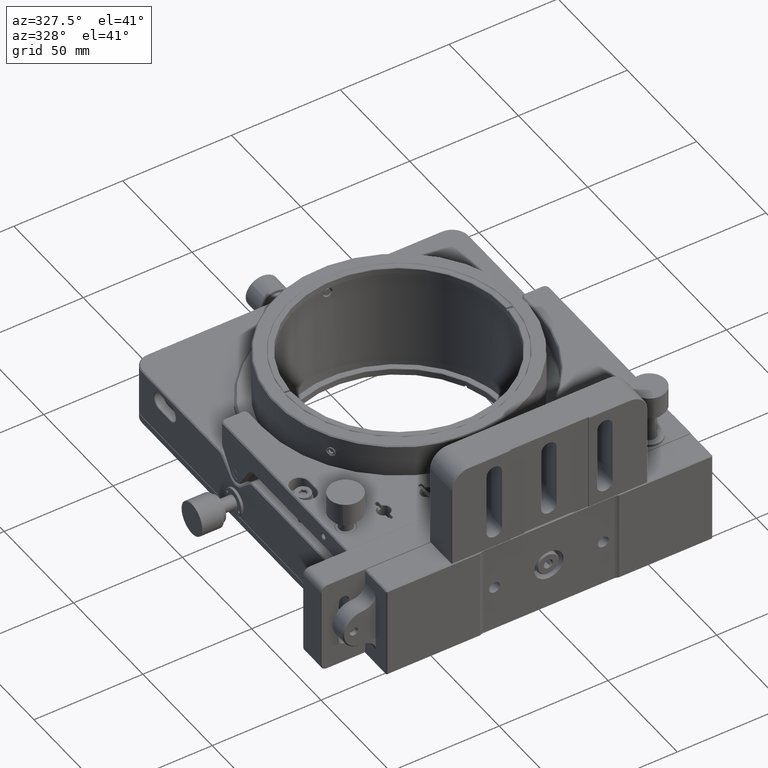
[diagram: clean part render]
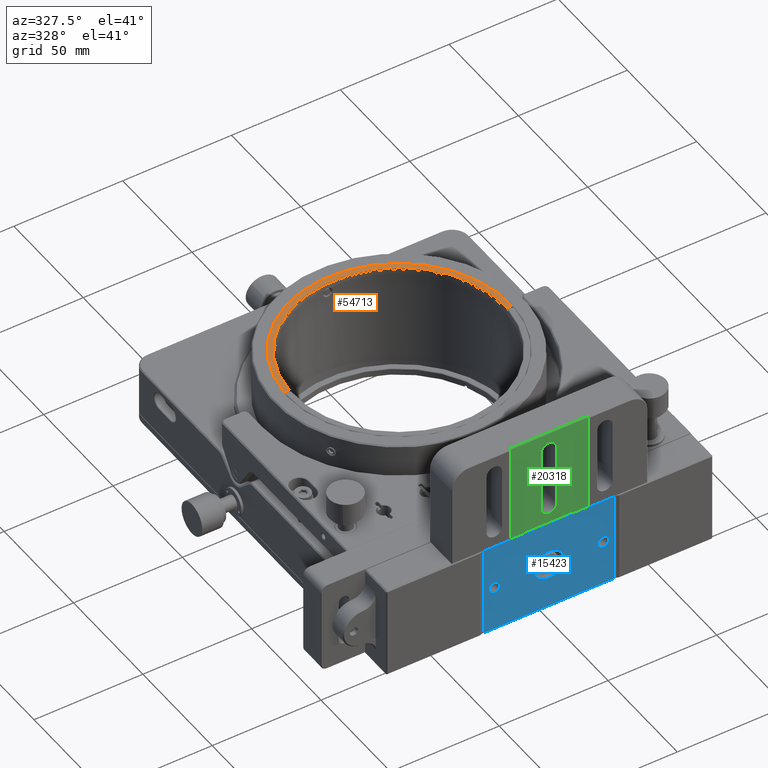
[diagram: same view with three faces highlighted in distinct colors, each labeled with its STEP entity id]
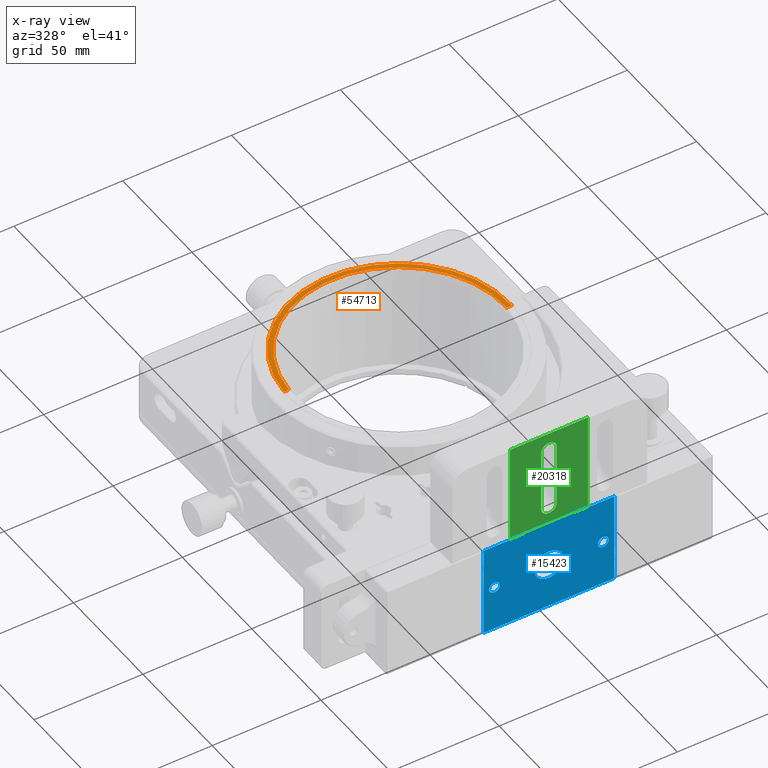
[diagram: x-ray of the same camera — body ghosted, the three highlighted faces saturated]
A machine part, auxiliary view with three faces highlighted in distinct colors.
The next image is the same camera in x-ray (body ghosted, the three faces saturated) — at least one of them is partly hidden behind the body in this view.
Their STEP definitions:

[orange] entity #54713 — the highlighted planar face has unit normal (0, 0, 1).
#6982 = CARTESIAN_POINT ( 'NONE',  ( -50.91170843086489839, 103.8046471215291859, 31.00000000000000000 ) ) ;
#7331 = DIRECTION ( 'NONE',  ( -2.547744655043520196E-18, -5.629695060032849058E-17, -1.000000000000000000 ) ) ;
#8041 = EDGE_CURVE ( 'NONE', #27380, #54493, #62987, .T. ) ;
#9778 = DIRECTION ( 'NONE',  ( 0.000000000000000000, -1.000000000000000000, 5.568915337801359241E-17 ) ) ;
#11958 = CARTESIAN_POINT ( 'NONE',  ( -48.56943563488880500, 103.6986464779245978, 31.00000000000000000 ) ) ;
#12565 = LINE ( 'NONE', #37384, #57631 ) ;
#13133 = AXIS2_PLACEMENT_3D ( 'NONE', #71982, #33384, #9778 ) ;
#15844 = CARTESIAN_POINT ( 'NONE',  ( 48.62368666622140267, 99.30012657215560523, 31.00000000000000000 ) ) ;
#16277 = ORIENTED_EDGE ( 'NONE', *, *, #30715, .F. ) ;
#18693 = EDGE_CURVE ( 'NONE', #27967, #54493, #33822, .T. ) ;
#18916 = ORIENTED_EDGE ( 'NONE', *, *, #8041, .T. ) ;
#20722 = DIRECTION ( 'NONE',  ( -0.9989775417337622976, 0.04520919277723466773, 0.000000000000000000 ) ) ;
#25564 = DIRECTION ( 'NONE',  ( -0.9989775417337621866, 0.04520919277723479957, 1.344410693882026114E-17 ) ) ;
#27380 = VERTEX_POINT ( 'NONE', #35665 ) ;
#27967 = VERTEX_POINT ( 'NONE', #11958 ) ;
#28095 = CARTESIAN_POINT ( 'NONE',  ( 49948.90421220380085, -2158.960252336699796, 30.99999999999934630 ) ) ;
#28481 = PLANE ( 'NONE',  #13133 ) ;
#29822 = VECTOR ( 'NONE', #39119, 1000.000000000000114 ) ;
#30715 = EDGE_CURVE ( 'NONE', #27380, #66044, #12565, .T. ) ;
#30743 = DIRECTION ( 'NONE',  ( 2.547744655043520196E-18, 5.629695060032849058E-17, 1.000000000000000000 ) ) ;
#33384 = DIRECTION ( 'NONE',  ( 1.597810555559200111E-17, 5.568915337801359241E-17, 1.000000000000000000 ) ) ;
#33822 = LINE ( 'NONE', #28095, #29822 ) ;
#35665 = CARTESIAN_POINT ( 'NONE',  ( 50.96595946219749607, 99.19412592855120181, 31.00000000000000000 ) ) ;
#37384 = CARTESIAN_POINT ( 'NONE',  ( 49948.90421220380085, -2158.960252336699796, 30.99999999999934630 ) ) ;
#37528 = CIRCLE ( 'NONE', #71236, 48.64999999999998437 ) ;
#39119 = DIRECTION ( 'NONE',  ( -0.9989775417337621866, 0.04520919277723479957, 1.344410693882026114E-17 ) ) ;
#42101 = ORIENTED_EDGE ( 'NONE', *, *, #18693, .F. ) ;
#42453 = EDGE_LOOP ( 'NONE', ( #16277, #18916, #42101, #68601 ) ) ;
#50410 = EDGE_CURVE ( 'NONE', #27967, #66044, #37528, .T. ) ;
#54493 = VERTEX_POINT ( 'NONE', #6982 ) ;
#54713 = ADVANCED_FACE ( 'NONE', ( #65479 ), #28481, .T. ) ;
#57631 = VECTOR ( 'NONE', #25564, 1000.000000000000114 ) ;
#62987 = CIRCLE ( 'NONE', #68202, 50.99449999999998084 ) ;
#65479 = FACE_OUTER_BOUND ( 'NONE', #42453, .T. ) ;
#66044 = VERTEX_POINT ( 'NONE', #15844 ) ;
#66547 = DIRECTION ( 'NONE',  ( -0.9989775417337624086, 0.04520919277723474405, 0.000000000000000000 ) ) ;
#68202 = AXIS2_PLACEMENT_3D ( 'NONE', #74251, #30743, #66547 ) ;
#68601 = ORIENTED_EDGE ( 'NONE', *, *, #50410, .T. ) ;
#71236 = AXIS2_PLACEMENT_3D ( 'NONE', #76051, #7331, #20722 ) ;
#71982 = CARTESIAN_POINT ( 'NONE',  ( -4.535430649846460040E-14, 100.9000000000000057, 31.00000000000000000 ) ) ;
#74251 = CARTESIAN_POINT ( 'NONE',  ( -4.535430649846460040E-14, 100.9000000000000057, 31.00000000000000000 ) ) ;
#76051 = CARTESIAN_POINT ( 'NONE',  ( -4.535430649846460040E-14, 100.9000000000000057, 31.00000000000000000 ) ) ;

[blue] entity #15423 — the highlighted planar face has unit normal (0, -1, 0).
#407 = CARTESIAN_POINT ( 'NONE',  ( -25.00000000000000000, -7.400000000000000355, -2.524999999999999911 ) ) ;
#1703 = CARTESIAN_POINT ( 'NONE',  ( 30.00000000000000000, -7.400000000000000355, 21.00000000000000000 ) ) ;
#2975 = VERTEX_POINT ( 'NONE', #80009 ) ;
#3219 = CARTESIAN_POINT ( 'NONE',  ( -30.00000000000000000, -7.400000000000000355, -21.50000000000000000 ) ) ;
#3860 = AXIS2_PLACEMENT_3D ( 'NONE', #78465, #23536, #47160 ) ;
#4063 = VERTEX_POINT ( 'NONE', #407 ) ;
#5407 = AXIS2_PLACEMENT_3D ( 'NONE', #68239, #19433, #55231 ) ;
#5435 = ORIENTED_EDGE ( 'NONE', *, *, #52379, .F. ) ;
#6538 = DIRECTION ( 'NONE',  ( -1.000000000000000000, -1.156482317317869999E-16, 0.000000000000000000 ) ) ;
#8118 = CIRCLE ( 'NONE', #58740, 6.750000000000000000 ) ;
#9059 = VECTOR ( 'NONE', #28007, 1000.000000000000000 ) ;
#9456 = CARTESIAN_POINT ( 'NONE',  ( 1.224646799147351975E-16, -7.400000000000000355, 0.000000000000000000 ) ) ;
#9850 = DIRECTION ( 'NONE',  ( 1.000000000000000000, 1.284980352575412699E-16, 0.000000000000000000 ) ) ;
#10407 = ORIENTED_EDGE ( 'NONE', *, *, #45158, .T. ) ;
#11403 = DIRECTION ( 'NONE',  ( 1.000000000000000000, 0.000000000000000000, 0.000000000000000000 ) ) ;
#11623 = CIRCLE ( 'NONE', #3860, 2.524999999999999467 ) ;
#12052 = PLANE ( 'NONE',  #71132 ) ;
#13443 = LINE ( 'NONE', #56144, #65770 ) ;
#13737 = CIRCLE ( 'NONE', #56571, 2.524999999999999467 ) ;
#15423 = ADVANCED_FACE ( 'NONE', ( #64965, #47868, #72660, #16944 ), #12052, .T. ) ;
#16336 = DIRECTION ( 'NONE',  ( 1.284980352575413685E-16, -1.000000000000000000, 0.000000000000000000 ) ) ;
#16747 = EDGE_LOOP ( 'NONE', ( #48555, #48993 ) ) ;
#16944 = FACE_BOUND ( 'NONE', #60136, .T. ) ;
#18039 = VERTEX_POINT ( 'NONE', #68386 ) ;
#18676 = VERTEX_POINT ( 'NONE', #1703 ) ;
#19433 = DIRECTION ( 'NONE',  ( 0.000000000000000000, -1.000000000000000000, 0.000000000000000000 ) ) ;
#20943 = CIRCLE ( 'NONE', #5407, 2.524999999999999467 ) ;
#21968 = CARTESIAN_POINT ( 'NONE',  ( 1.224646799147351975E-16, -7.400000000000000355, -6.750000000000000000 ) ) ;
#22549 = EDGE_LOOP ( 'NONE', ( #24252, #63631 ) ) ;
#23536 = DIRECTION ( 'NONE',  ( 0.000000000000000000, -1.000000000000000000, 0.000000000000000000 ) ) ;
#24168 = ORIENTED_EDGE ( 'NONE', *, *, #73041, .F. ) ;
#24252 = ORIENTED_EDGE ( 'NONE', *, *, #77571, .F. ) ;
#24833 = EDGE_LOOP ( 'NONE', ( #71006, #24168, #77578, #10407 ) ) ;
#27314 = ORIENTED_EDGE ( 'NONE', *, *, #40169, .F. ) ;
#27655 = CARTESIAN_POINT ( 'NONE',  ( -25.00000000000000000, -7.400000000000000355, -7.654042494670959381E-15 ) ) ;
#28007 = DIRECTION ( 'NONE',  ( 0.000000000000000000, 0.000000000000000000, 1.000000000000000000 ) ) ;
#32248 = DIRECTION ( 'NONE',  ( 1.284980352575413685E-16, -1.000000000000000000, 0.000000000000000000 ) ) ;
#33428 = DIRECTION ( 'NONE',  ( 1.000000000000000000, 1.284980352575412699E-16, 0.000000000000000000 ) ) ;
#34133 = LINE ( 'NONE', #3219, #9059 ) ;
#34496 = EDGE_CURVE ( 'NONE', #4063, #35215, #13737, .T. ) ;
#34687 = DIRECTION ( 'NONE',  ( 1.000000000000000000, 1.156482317317869999E-16, 0.000000000000000000 ) ) ;
#35215 = VERTEX_POINT ( 'NONE', #78297 ) ;
#36030 = VECTOR ( 'NONE', #41649, 1000.000000000000000 ) ;
#36073 = DIRECTION ( 'NONE',  ( 1.164243943608595935E-16, -1.000000000000000000, 0.000000000000000000 ) ) ;
#36350 = LINE ( 'NONE', #61136, #36030 ) ;
#39804 = CIRCLE ( 'NONE', #60569, 2.524999999999999467 ) ;
#40169 = EDGE_CURVE ( 'NONE', #61567, #66572, #39804, .T. ) ;
#40790 = CARTESIAN_POINT ( 'NONE',  ( -30.00000000000000000, -7.400000000000000355, -21.00000000000000000 ) ) ;
#41649 = DIRECTION ( 'NONE',  ( 0.000000000000000000, 0.000000000000000000, 1.000000000000000000 ) ) ;
#41916 = DIRECTION ( 'NONE',  ( 0.000000000000000000, -1.000000000000000000, 0.000000000000000000 ) ) ;
#45158 = EDGE_CURVE ( 'NONE', #64914, #18676, #36350, .T. ) ;
#45972 = DIRECTION ( 'NONE',  ( 1.000000000000000000, 0.000000000000000000, 0.000000000000000000 ) ) ;
#46255 = CARTESIAN_POINT ( 'NONE',  ( 25.00000000000000000, -7.400000000000000355, -2.524999999999999911 ) ) ;
#47160 = DIRECTION ( 'NONE',  ( 1.000000000000000000, 0.000000000000000000, 0.000000000000000000 ) ) ;
#47868 = FACE_BOUND ( 'NONE', #22549, .T. ) ;
#48555 = ORIENTED_EDGE ( 'NONE', *, *, #34496, .F. ) ;
#48871 = CARTESIAN_POINT ( 'NONE',  ( -30.00000000000000000, -7.400000000000000355, 21.00000000000000000 ) ) ;
#48993 = ORIENTED_EDGE ( 'NONE', *, *, #75953, .F. ) ;
#52299 = CARTESIAN_POINT ( 'NONE',  ( 25.00000000000000000, -7.400000000000000355, 2.524999999999999911 ) ) ;
#52379 = EDGE_CURVE ( 'NONE', #66572, #61567, #11623, .T. ) ;
#53524 = AXIS2_PLACEMENT_3D ( 'NONE', #63925, #32248, #33428 ) ;
#54101 = CARTESIAN_POINT ( 'NONE',  ( 25.00000000000000000, -7.400000000000000355, 1.530808498934190141E-15 ) ) ;
#54440 = VERTEX_POINT ( 'NONE', #48871 ) ;
#54701 = VERTEX_POINT ( 'NONE', #21968 ) ;
#54753 = DIRECTION ( 'NONE',  ( 0.000000000000000000, 0.000000000000000000, -1.000000000000000000 ) ) ;
#54826 = CARTESIAN_POINT ( 'NONE',  ( 30.00000000000000000, -7.400000000000000355, -21.00000000000000000 ) ) ;
#55231 = DIRECTION ( 'NONE',  ( 1.000000000000000000, 0.000000000000000000, 0.000000000000000000 ) ) ;
#56144 = CARTESIAN_POINT ( 'NONE',  ( -30.00000000000000000, -7.400000000000000355, 21.00000000000000000 ) ) ;
#56571 = AXIS2_PLACEMENT_3D ( 'NONE', #27655, #69968, #45972 ) ;
#58740 = AXIS2_PLACEMENT_3D ( 'NONE', #9456, #16336, #9850 ) ;
#59017 = EDGE_CURVE ( 'NONE', #18039, #54701, #75597, .T. ) ;
#59074 = LINE ( 'NONE', #40790, #63399 ) ;
#60136 = EDGE_LOOP ( 'NONE', ( #5435, #27314 ) ) ;
#60569 = AXIS2_PLACEMENT_3D ( 'NONE', #54101, #41916, #11403 ) ;
#61136 = CARTESIAN_POINT ( 'NONE',  ( 30.00000000000000000, -7.400000000000000355, -21.50000000000000000 ) ) ;
#61567 = VERTEX_POINT ( 'NONE', #52299 ) ;
#63399 = VECTOR ( 'NONE', #34687, 1000.000000000000000 ) ;
#63631 = ORIENTED_EDGE ( 'NONE', *, *, #59017, .F. ) ;
#63925 = CARTESIAN_POINT ( 'NONE',  ( 1.224646799147351975E-16, -7.400000000000000355, 0.000000000000000000 ) ) ;
#64914 = VERTEX_POINT ( 'NONE', #54826 ) ;
#64965 = FACE_OUTER_BOUND ( 'NONE', #24833, .T. ) ;
#65770 = VECTOR ( 'NONE', #6538, 1000.000000000000000 ) ;
#65820 = EDGE_CURVE ( 'NONE', #18676, #54440, #13443, .T. ) ;
#66572 = VERTEX_POINT ( 'NONE', #46255 ) ;
#68239 = CARTESIAN_POINT ( 'NONE',  ( -25.00000000000000000, -7.400000000000000355, -7.654042494670959381E-15 ) ) ;
#68386 = CARTESIAN_POINT ( 'NONE',  ( 9.491012693391979898E-16, -7.400000000000000355, 6.750000000000000000 ) ) ;
#68432 = EDGE_CURVE ( 'NONE', #2975, #64914, #59074, .T. ) ;
#69968 = DIRECTION ( 'NONE',  ( 0.000000000000000000, -1.000000000000000000, 0.000000000000000000 ) ) ;
#71006 = ORIENTED_EDGE ( 'NONE', *, *, #65820, .T. ) ;
#71132 = AXIS2_PLACEMENT_3D ( 'NONE', #80370, #36073, #54753 ) ;
#72660 = FACE_BOUND ( 'NONE', #16747, .T. ) ;
#73041 = EDGE_CURVE ( 'NONE', #2975, #54440, #34133, .T. ) ;
#75597 = CIRCLE ( 'NONE', #53524, 6.750000000000000000 ) ;
#75953 = EDGE_CURVE ( 'NONE', #35215, #4063, #20943, .T. ) ;
#77571 = EDGE_CURVE ( 'NONE', #54701, #18039, #8118, .T. ) ;
#77578 = ORIENTED_EDGE ( 'NONE', *, *, #68432, .T. ) ;
#78297 = CARTESIAN_POINT ( 'NONE',  ( -25.00000000000000000, -7.400000000000000355, 2.524999999999999911 ) ) ;
#78465 = CARTESIAN_POINT ( 'NONE',  ( 25.00000000000000000, -7.400000000000000355, 1.530808498934190141E-15 ) ) ;
#80009 = CARTESIAN_POINT ( 'NONE',  ( -30.00000000000000000, -7.400000000000000355, -21.00000000000000000 ) ) ;
#80370 = CARTESIAN_POINT ( 'NONE',  ( 8.615405182703600449E-16, -7.400000000000000355, 0.000000000000000000 ) ) ;

[green] entity #20318 — the highlighted planar face has unit normal (-0, -1, 0).
#2264 = VECTOR ( 'NONE', #10193, 1000.000000000000000 ) ;
#2423 = VERTEX_POINT ( 'NONE', #73202 ) ;
#2844 = VECTOR ( 'NONE', #54736, 1000.000000000000000 ) ;
#3321 = FACE_OUTER_BOUND ( 'NONE', #53804, .T. ) ;
#3615 = CARTESIAN_POINT ( 'NONE',  ( 10.00000000000000000, -7.400000000000000355, 19.00000000000000000 ) ) ;
#9016 = FACE_BOUND ( 'NONE', #58870, .T. ) ;
#9356 = VECTOR ( 'NONE', #40530, 1000.000000000000000 ) ;
#10193 = DIRECTION ( 'NONE',  ( 1.000000000000000000, -5.551115123125779621E-17, -1.734723475976804876E-16 ) ) ;
#10476 = AXIS2_PLACEMENT_3D ( 'NONE', #52920, #77725, #15917 ) ;
#10911 = DIRECTION ( 'NONE',  ( 0.000000000000000000, 0.000000000000000000, 1.000000000000000000 ) ) ;
#11658 = VERTEX_POINT ( 'NONE', #41107 ) ;
#11670 = CARTESIAN_POINT ( 'NONE',  ( 2.393918396847994579E-15, -7.400000000000000355, 26.50000000000000000 ) ) ;
#11699 = EDGE_CURVE ( 'NONE', #23222, #28624, #28898, .T. ) ;
#11763 = ORIENTED_EDGE ( 'NONE', *, *, #51639, .T. ) ;
#12011 = VERTEX_POINT ( 'NONE', #45505 ) ;
#13035 = EDGE_CURVE ( 'NONE', #53874, #2423, #39124, .T. ) ;
#13303 = AXIS2_PLACEMENT_3D ( 'NONE', #54145, #16738, #22835 ) ;
#13727 = EDGE_CURVE ( 'NONE', #28624, #13957, #60826, .T. ) ;
#13771 = ORIENTED_EDGE ( 'NONE', *, *, #67521, .T. ) ;
#13957 = VERTEX_POINT ( 'NONE', #80425 ) ;
#15144 = ORIENTED_EDGE ( 'NONE', *, *, #64353, .T. ) ;
#15917 = DIRECTION ( 'NONE',  ( -1.000000000000000000, 5.551115123125809819E-17, 0.000000000000000000 ) ) ;
#16738 = DIRECTION ( 'NONE',  ( 5.551115123125809819E-17, 1.000000000000000000, 3.530871564709945388E-31 ) ) ;
#17041 = DIRECTION ( 'NONE',  ( 1.000000000000000000, -5.551115123125779621E-17, 0.000000000000000000 ) ) ;
#18044 = VECTOR ( 'NONE', #72052, 1000.000000000000000 ) ;
#19102 = AXIS2_PLACEMENT_3D ( 'NONE', #41434, #72721, #34130 ) ;
#20175 = EDGE_CURVE ( 'NONE', #12011, #53874, #57209, .T. ) ;
#20318 = ADVANCED_FACE ( 'NONE', ( #9016, #3321 ), #28106, .T. ) ;
#20411 = CARTESIAN_POINT ( 'NONE',  ( 18.00000000000000000, -7.400000000000000355, 67.25000000000000000 ) ) ;
#20909 = VERTEX_POINT ( 'NONE', #11670 ) ;
#21902 = DIRECTION ( 'NONE',  ( 5.551115123125809819E-17, 1.000000000000000000, 0.000000000000000000 ) ) ;
#22835 = DIRECTION ( 'NONE',  ( -6.360652745248294783E-15, 0.000000000000000000, 1.000000000000000000 ) ) ;
#23222 = VERTEX_POINT ( 'NONE', #79679 ) ;
#25490 = ORIENTED_EDGE ( 'NONE', *, *, #11699, .T. ) ;
#27313 = DIRECTION ( 'NONE',  ( 0.000000000000000000, 0.000000000000000000, 1.000000000000000000 ) ) ;
#28106 = PLANE ( 'NONE',  #10476 ) ;
#28624 = VERTEX_POINT ( 'NONE', #65854 ) ;
#28898 = LINE ( 'NONE', #29296, #2264 ) ;
#29296 = CARTESIAN_POINT ( 'NONE',  ( 10.00000000000000000, -7.400000000000000355, 22.00000000000000000 ) ) ;
#29706 = ORIENTED_EDGE ( 'NONE', *, *, #13035, .T. ) ;
#29924 = AXIS2_PLACEMENT_3D ( 'NONE', #48124, #79038, #72923 ) ;
#30818 = CARTESIAN_POINT ( 'NONE',  ( 18.00000000000000000, -7.400000000000000355, 21.50000000000000000 ) ) ;
#30978 = CARTESIAN_POINT ( 'NONE',  ( 2.191302694853899645E-15, -7.400000000000000355, 30.05000000000000071 ) ) ;
#32517 = ORIENTED_EDGE ( 'NONE', *, *, #20175, .T. ) ;
#32633 = DIRECTION ( 'NONE',  ( 0.000000000000000000, 0.000000000000000000, -1.000000000000000000 ) ) ;
#34097 = VERTEX_POINT ( 'NONE', #48073 ) ;
#34130 = DIRECTION ( 'NONE',  ( 0.000000000000000000, 0.000000000000000000, 1.000000000000000000 ) ) ;
#34629 = CARTESIAN_POINT ( 'NONE',  ( 18.00000000000000000, -7.400000000000000355, 67.50000000000000000 ) ) ;
#36289 = DIRECTION ( 'NONE',  ( 5.551115123125809819E-17, 1.000000000000000000, 0.000000000000000000 ) ) ;
#38789 = ORIENTED_EDGE ( 'NONE', *, *, #59370, .T. ) ;
#39124 = LINE ( 'NONE', #40729, #62038 ) ;
#39222 = VERTEX_POINT ( 'NONE', #44911 ) ;
#40064 = AXIS2_PLACEMENT_3D ( 'NONE', #3615, #21902, #10911 ) ;
#40530 = DIRECTION ( 'NONE',  ( -1.000000000000000000, 5.551115123125779621E-17, 0.000000000000000000 ) ) ;
#40729 = CARTESIAN_POINT ( 'NONE',  ( 3.550000000000000266, -7.400000000000000355, 30.05000000000000071 ) ) ;
#41107 = CARTESIAN_POINT ( 'NONE',  ( -11.65831239517770079, -7.400000000000000355, 21.50000000000000000 ) ) ;
#41161 = CARTESIAN_POINT ( 'NONE',  ( -18.00000000000000000, -7.400000000000000355, 21.50000000000000000 ) ) ;
#41434 = CARTESIAN_POINT ( 'NONE',  ( 2.191302694853899645E-15, -7.400000000000000355, 30.05000000000000071 ) ) ;
#44066 = EDGE_CURVE ( 'NONE', #2423, #20909, #55513, .T. ) ;
#44911 = CARTESIAN_POINT ( 'NONE',  ( -18.00000000000000000, -7.400000000000000355, 67.25000000000000000 ) ) ;
#45020 = ORIENTED_EDGE ( 'NONE', *, *, #77631, .T. ) ;
#45505 = CARTESIAN_POINT ( 'NONE',  ( -3.550000000000000266, -7.400000000000000355, 58.95000000000000284 ) ) ;
#45549 = CARTESIAN_POINT ( 'NONE',  ( -18.00000000000000000, -7.400000000000000355, 21.50000000000000000 ) ) ;
#45614 = ORIENTED_EDGE ( 'NONE', *, *, #13727, .T. ) ;
#45825 = CARTESIAN_POINT ( 'NONE',  ( -18.00000000000000000, -7.400000000000000355, 67.25000000000000000 ) ) ;
#47258 = LINE ( 'NONE', #41161, #18044 ) ;
#47449 = LINE ( 'NONE', #66934, #2844 ) ;
#48073 = CARTESIAN_POINT ( 'NONE',  ( -3.550000000000000266, -7.400000000000000355, 30.05000000000000071 ) ) ;
#48124 = CARTESIAN_POINT ( 'NONE',  ( 2.191302694853899645E-15, -7.400000000000000355, 58.95000000000000284 ) ) ;
#48462 = VERTEX_POINT ( 'NONE', #20411 ) ;
#49673 = DIRECTION ( 'NONE',  ( 0.000000000000000000, 0.000000000000000000, 1.000000000000000000 ) ) ;
#51312 = VECTOR ( 'NONE', #53330, 1000.000000000000000 ) ;
#51639 = EDGE_CURVE ( 'NONE', #75461, #11658, #47258, .T. ) ;
#52920 = CARTESIAN_POINT ( 'NONE',  ( 2.191302694853899645E-15, -7.400000000000000355, 44.50000000000000000 ) ) ;
#53330 = DIRECTION ( 'NONE',  ( 0.000000000000000000, 0.000000000000000000, 1.000000000000000000 ) ) ;
#53521 = CIRCLE ( 'NONE', #13303, 2.999999999999999112 ) ;
#53804 = EDGE_LOOP ( 'NONE', ( #38789, #78888, #80241, #11763, #45020, #25490, #45614, #13771 ) ) ;
#53874 = VERTEX_POINT ( 'NONE', #72984 ) ;
#54145 = CARTESIAN_POINT ( 'NONE',  ( -10.00000000000000000, -7.400000000000000355, 19.00000000000000000 ) ) ;
#54736 = DIRECTION ( 'NONE',  ( 0.000000000000000000, 0.000000000000000000, -1.000000000000000000 ) ) ;
#55513 = CIRCLE ( 'NONE', #19102, 3.549999999999997602 ) ;
#55971 = EDGE_CURVE ( 'NONE', #48462, #39222, #58006, .T. ) ;
#57209 = CIRCLE ( 'NONE', #29924, 3.549999999999997602 ) ;
#58006 = LINE ( 'NONE', #45825, #9356 ) ;
#58228 = AXIS2_PLACEMENT_3D ( 'NONE', #30978, #36289, #49673 ) ;
#58870 = EDGE_LOOP ( 'NONE', ( #29706, #67040, #65702, #15144, #32517 ) ) ;
#59370 = EDGE_CURVE ( 'NONE', #63270, #48462, #60217, .T. ) ;
#60217 = LINE ( 'NONE', #34629, #66527 ) ;
#60826 = CIRCLE ( 'NONE', #40064, 2.999999999999999112 ) ;
#62038 = VECTOR ( 'NONE', #32633, 1000.000000000000000 ) ;
#63270 = VERTEX_POINT ( 'NONE', #30818 ) ;
#64353 = EDGE_CURVE ( 'NONE', #34097, #12011, #72038, .T. ) ;
#65139 = CARTESIAN_POINT ( 'NONE',  ( -3.550000000000000266, -7.400000000000000355, 30.05000000000000071 ) ) ;
#65702 = ORIENTED_EDGE ( 'NONE', *, *, #68566, .T. ) ;
#65854 = CARTESIAN_POINT ( 'NONE',  ( 10.00000000000000000, -7.400000000000000355, 22.00000000000000000 ) ) ;
#66527 = VECTOR ( 'NONE', #27313, 1000.000000000000000 ) ;
#66934 = CARTESIAN_POINT ( 'NONE',  ( -18.00000000000000000, -7.400000000000000355, 67.50000000000000000 ) ) ;
#67040 = ORIENTED_EDGE ( 'NONE', *, *, #44066, .T. ) ;
#67289 = VECTOR ( 'NONE', #17041, 1000.000000000000000 ) ;
#67521 = EDGE_CURVE ( 'NONE', #13957, #63270, #71555, .T. ) ;
#68566 = EDGE_CURVE ( 'NONE', #20909, #34097, #73789, .T. ) ;
#71555 = LINE ( 'NONE', #72753, #67289 ) ;
#72038 = LINE ( 'NONE', #65139, #51312 ) ;
#72052 = DIRECTION ( 'NONE',  ( 1.000000000000000000, -5.551115123125779621E-17, 0.000000000000000000 ) ) ;
#72721 = DIRECTION ( 'NONE',  ( 5.551115123125809819E-17, 1.000000000000000000, 0.000000000000000000 ) ) ;
#72753 = CARTESIAN_POINT ( 'NONE',  ( -18.00000000000000000, -7.400000000000000355, 21.50000000000000000 ) ) ;
#72923 = DIRECTION ( 'NONE',  ( 0.000000000000000000, 0.000000000000000000, 1.000000000000000000 ) ) ;
#72984 = CARTESIAN_POINT ( 'NONE',  ( 3.550000000000000266, -7.400000000000000355, 58.95000000000000284 ) ) ;
#73202 = CARTESIAN_POINT ( 'NONE',  ( 3.550000000000000266, -7.400000000000000355, 30.05000000000000071 ) ) ;
#73789 = CIRCLE ( 'NONE', #58228, 3.549999999999997602 ) ;
#75461 = VERTEX_POINT ( 'NONE', #45549 ) ;
#76637 = EDGE_CURVE ( 'NONE', #39222, #75461, #47449, .T. ) ;
#77631 = EDGE_CURVE ( 'NONE', #11658, #23222, #53521, .T. ) ;
#77725 = DIRECTION ( 'NONE',  ( -5.551115123125809819E-17, -1.000000000000000000, 0.000000000000000000 ) ) ;
#78888 = ORIENTED_EDGE ( 'NONE', *, *, #55971, .T. ) ;
#79038 = DIRECTION ( 'NONE',  ( 5.551115123125809819E-17, 1.000000000000000000, 0.000000000000000000 ) ) ;
#79679 = CARTESIAN_POINT ( 'NONE',  ( -10.00000000000000000, -7.400000000000000355, 22.00000000000000000 ) ) ;
#80241 = ORIENTED_EDGE ( 'NONE', *, *, #76637, .T. ) ;
#80425 = CARTESIAN_POINT ( 'NONE',  ( 11.65831239517770079, -7.400000000000000355, 21.50000000000000000 ) ) ;